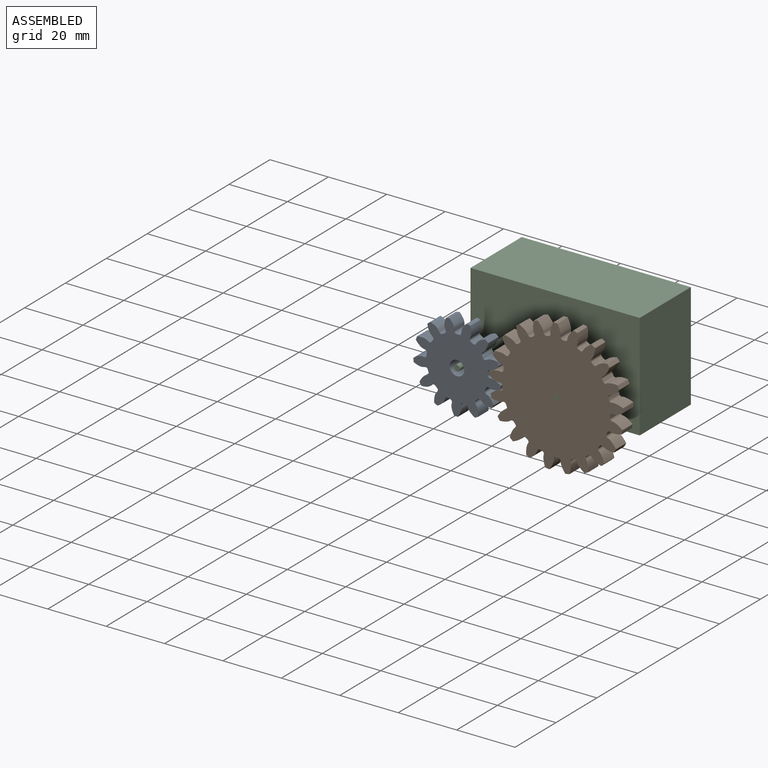
[diagram: assembled view]
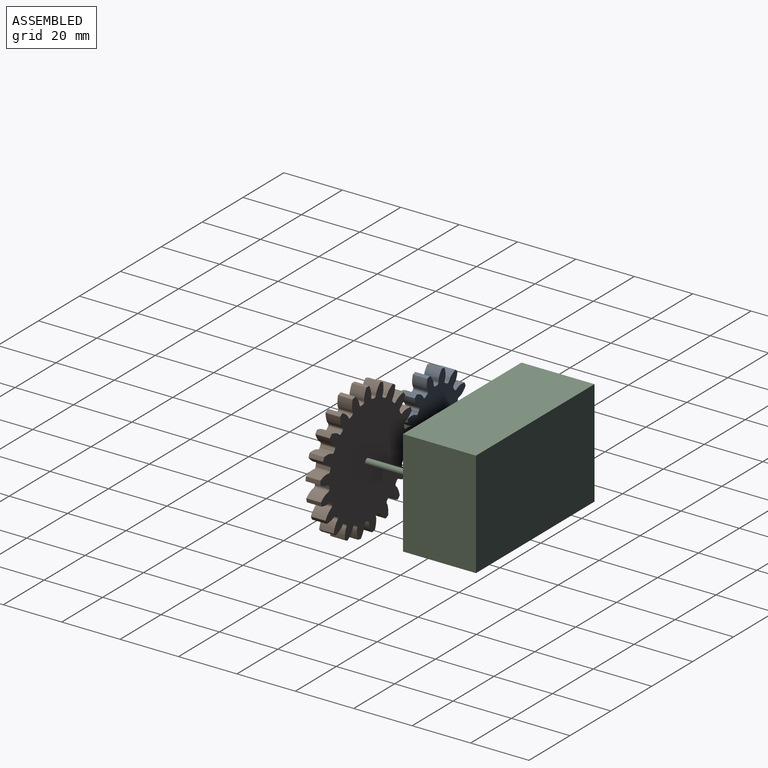
[diagram: assembled view, second angle]
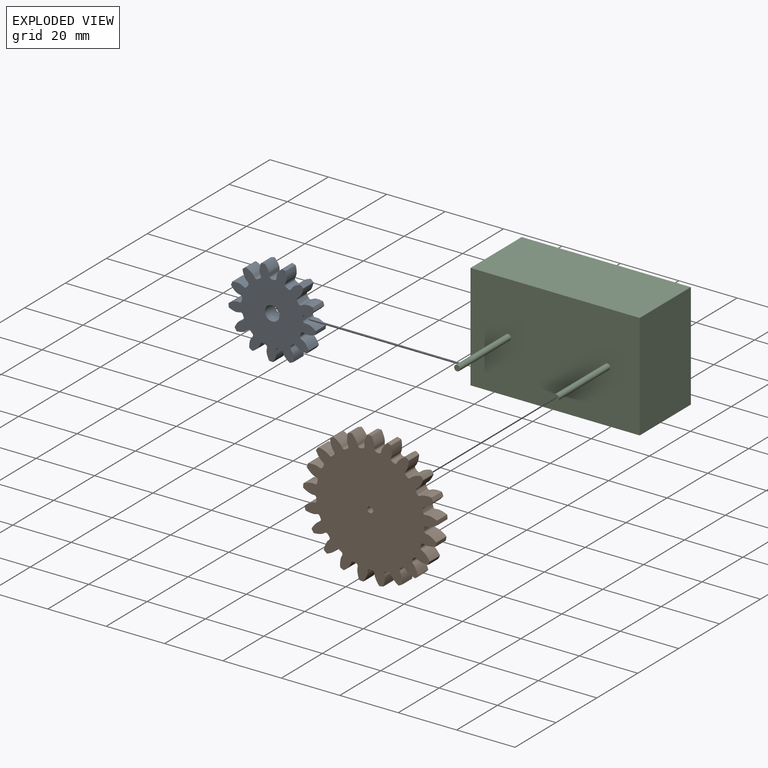
[diagram: exploded view]
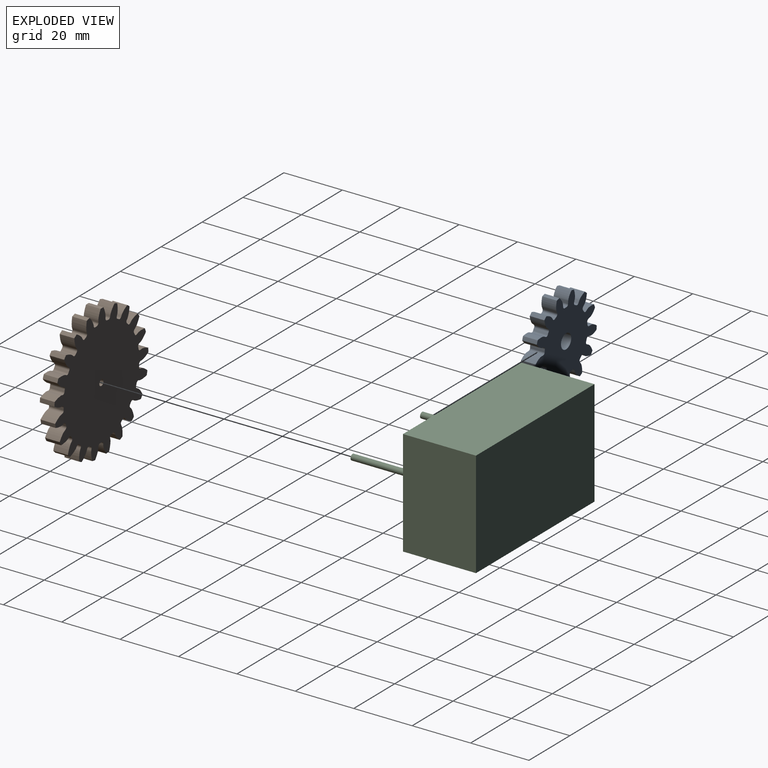
[diagram: exploded view, second angle]
ASSEMBLY  parts=3 mates=2
PART A: 81 faces, bbox 29.8x5x30 mm
  f0: extruded ~5x3.55mm, area 20.4mm2, adj f51,f52,f53,f54
  f1: cylinder r=10.5mm len=5mm, axis (0,1,0), area 4.2mm2, adj f52,f53,f54,f55
  f2: extruded ~5x3.55mm, area 20.4mm2, adj f3,f52,f53,f55
  f3: cylinder r=15mm len=5mm, axis (0,1,0), area 6.3mm2, adj f2,f4,f52,f53
  f4: extruded ~5x3.97mm, area 20.4mm2, adj f3,f52,f53,f56
  f5: cylinder r=10.5mm len=5mm, axis (0,1,0), area 4.2mm2, adj f52,f53,f56,f57
  f6: extruded ~5x3.23mm, area 20.4mm2, adj f7,f52,f53,f57
  f7: cylinder r=15mm len=5mm, axis (0,1,0), area 6.3mm2, adj f6,f8,f52,f53
  f8: extruded ~5x3.49mm, area 20.4mm2, adj f7,f52,f53,f58
  f9: cylinder r=10.5mm len=5mm, axis (0,1,0), area 4.2mm2, adj f52,f53,f58,f59
  f10: extruded ~5x3.94mm, area 20.4mm2, adj f11,f52,f53,f59
  f11: cylinder r=15mm len=5mm, axis (0,1,0), area 6.3mm2, adj f10,f12,f52,f53
  f12: extruded ~5x3.31mm, area 20.4mm2, adj f11,f52,f53,f60
  f13: cylinder r=10.5mm len=5mm, axis (0,1,0), area 4.2mm2, adj f52,f53,f60,f61
  f14: extruded ~5x3.74mm, area 20.4mm2, adj f15,f52,f53,f61
  f15: cylinder r=15mm len=5mm, axis (0,1,0), area 6.3mm2, adj f14,f16,f52,f53
  f16: extruded ~5x3.95mm, area 20.4mm2, adj f15,f52,f53,f62
  f17: cylinder r=10.5mm len=5mm, axis (0,1,0), area 4.2mm2, adj f52,f53,f62,f63
  f18: extruded ~5x2.93mm, area 20.4mm2, adj f19,f52,f53,f63
  f19: cylinder r=15mm len=5mm, axis (0,1,0), area 6.3mm2, adj f18,f20,f52,f53
  f20: extruded ~5x3.69mm, area 20.4mm2, adj f19,f52,f53,f64
  f21: cylinder r=10.5mm len=5mm, axis (0,1,0), area 4.2mm2, adj f52,f53,f64,f65
  f22: extruded ~5x3.84mm, area 20.4mm2, adj f23,f52,f53,f65
  f23: cylinder r=15mm len=5mm, axis (0,1,0), area 6.3mm2, adj f22,f24,f52,f53
  f24: extruded ~5x3.02mm, area 20.4mm2, adj f23,f52,f53,f66
  f25: cylinder r=10.5mm len=5mm, axis (0,1,0), area 4.2mm2, adj f52,f53,f66,f67
  f26: extruded ~5x3.87mm, area 20.4mm2, adj f27,f52,f53,f67
  f27: cylinder r=15mm len=5mm, axis (0,1,0), area 6.3mm2, adj f26,f28,f52,f53
  f28: extruded ~5x3.87mm, area 20.4mm2, adj f27,f52,f53,f68
  f29: cylinder r=10.5mm len=5mm, axis (0,1,0), area 4.2mm2, adj f52,f53,f68,f69
  f30: extruded ~5x3.02mm, area 20.4mm2, adj f31,f52,f53,f69
  f31: cylinder r=15mm len=5mm, axis (0,1,0), area 6.3mm2, adj f30,f32,f52,f53
  f32: extruded ~5x3.84mm, area 20.4mm2, adj f31,f52,f53,f70
  f33: cylinder r=10.5mm len=5mm, axis (0,1,0), area 4.2mm2, adj f52,f53,f70,f71
  f34: extruded ~5x3.69mm, area 20.4mm2, adj f35,f52,f53,f71
  f35: cylinder r=15mm len=5mm, axis (0,1,0), area 6.3mm2, adj f34,f36,f52,f53
  f36: extruded ~5x2.93mm, area 20.4mm2, adj f35,f52,f53,f72
  f37: cylinder r=10.5mm len=5mm, axis (0,1,0), area 4.2mm2, adj f52,f53,f72,f73
  f38: extruded ~5x3.95mm, area 20.4mm2, adj f39,f52,f53,f73
  f39: cylinder r=15mm len=5mm, axis (0,1,0), area 6.3mm2, adj f38,f40,f52,f53
  f40: extruded ~5x3.74mm, area 20.4mm2, adj f39,f52,f53,f74
  f41: cylinder r=10.5mm len=5mm, axis (0,1,0), area 4.2mm2, adj f52,f53,f74,f75
  f42: extruded ~5x3.31mm, area 20.4mm2, adj f43,f52,f53,f75
  f43: cylinder r=15mm len=5mm, axis (0,1,0), area 6.3mm2, adj f42,f44,f52,f53
  f44: extruded ~5x3.94mm, area 20.4mm2, adj f43,f52,f53,f76
  f45: cylinder r=10.5mm len=5mm, axis (0,1,0), area 4.2mm2, adj f52,f53,f76,f77
  f46: extruded ~5x3.49mm, area 20.4mm2, adj f47,f52,f53,f77
  f47: cylinder r=15mm len=5mm, axis (0,1,0), area 6.3mm2, adj f46,f48,f52,f53
  f48: extruded ~5x3.23mm, area 20.4mm2, adj f47,f52,f53,f78
  f49: cylinder r=10.5mm len=5mm, axis (0,1,0), area 4.2mm2, adj f52,f53,f78,f79
  f50: extruded ~5x3.97mm, area 20.4mm2, adj f51,f52,f53,f79
  f51: cylinder r=15mm len=5mm, axis (0,1,0), area 6.3mm2, adj f0,f50,f52,f53
  f52: plane 29.98x29.76mm, normal (0,-1,0), area 492.7mm2, adj f0,f1,f2,f3,f4,f5,f6,f7
  f53: plane 29.98x29.76mm, normal (0,1,0), area 492.7mm2, adj f0,f1,f2,f3,f4,f5,f6,f7
  f54: cylinder r=0.74mm len=5mm, axis (0,1,0), area 5.6mm2, adj f0,f1,f52,f53
  f55: cylinder r=0.74mm len=5mm, axis (0,1,0), area 5.6mm2, adj f1,f2,f52,f53
  f56: cylinder r=0.74mm len=5mm, axis (0,1,0), area 5.6mm2, adj f4,f5,f52,f53
  f57: cylinder r=0.74mm len=5mm, axis (0,1,0), area 5.6mm2, adj f5,f6,f52,f53
  f58: cylinder r=0.74mm len=5mm, axis (0,1,0), area 5.6mm2, adj f8,f9,f52,f53
  f59: cylinder r=0.74mm len=5mm, axis (0,1,0), area 5.6mm2, adj f9,f10,f52,f53
  f60: cylinder r=0.74mm len=5mm, axis (0,1,0), area 5.6mm2, adj f12,f13,f52,f53
  f61: cylinder r=0.74mm len=5mm, axis (0,1,0), area 5.6mm2, adj f13,f14,f52,f53
  f62: cylinder r=0.74mm len=5mm, axis (0,1,0), area 5.6mm2, adj f16,f17,f52,f53
  f63: cylinder r=0.74mm len=5mm, axis (0,1,0), area 5.6mm2, adj f17,f18,f52,f53
  f64: cylinder r=0.74mm len=5mm, axis (0,1,0), area 5.6mm2, adj f20,f21,f52,f53
  f65: cylinder r=0.74mm len=5mm, axis (0,1,0), area 5.6mm2, adj f21,f22,f52,f53
  f66: cylinder r=0.74mm len=5mm, axis (0,1,0), area 5.6mm2, adj f24,f25,f52,f53
  f67: cylinder r=0.74mm len=5mm, axis (0,1,0), area 5.6mm2, adj f25,f26,f52,f53
  f68: cylinder r=0.74mm len=5mm, axis (0,1,0), area 5.6mm2, adj f28,f29,f52,f53
  f69: cylinder r=0.74mm len=5mm, axis (0,1,0), area 5.6mm2, adj f29,f30,f52,f53
  f70: cylinder r=0.74mm len=5mm, axis (0,1,0), area 5.6mm2, adj f32,f33,f52,f53
  f71: cylinder r=0.74mm len=5mm, axis (0,1,0), area 5.6mm2, adj f33,f34,f52,f53
  f72: cylinder r=0.74mm len=5mm, axis (0,1,0), area 5.6mm2, adj f36,f37,f52,f53
  f73: cylinder r=0.74mm len=5mm, axis (0,1,0), area 5.6mm2, adj f37,f38,f52,f53
  f74: cylinder r=0.74mm len=5mm, axis (0,1,0), area 5.6mm2, adj f40,f41,f52,f53
  f75: cylinder r=0.74mm len=5mm, axis (0,1,0), area 5.6mm2, adj f41,f42,f52,f53
  f76: cylinder r=0.74mm len=5mm, axis (0,1,0), area 5.6mm2, adj f44,f45,f52,f53
  f77: cylinder r=0.74mm len=5mm, axis (0,1,0), area 5.6mm2, adj f45,f46,f52,f53
  f78: cylinder r=0.74mm len=5mm, axis (0,1,0), area 5.6mm2, adj f48,f49,f52,f53
  f79: cylinder r=0.74mm len=5mm, axis (0,1,0), area 5.6mm2, adj f49,f50,f52,f53
  f80: cylinder r=2.5mm len=5mm, axis (0,1,0), area 78.5mm2, adj f52,f53
PART B: 129 faces, bbox 45.9x5x46 mm
  f0: extruded ~5x3.65mm, area 20.2mm2, adj f83,f84,f85,f86
  f1: cylinder r=18.5mm len=5mm, axis (0,1,0), area 4mm2, adj f84,f85,f86,f87
  f2: extruded ~5x3.65mm, area 20.2mm2, adj f3,f84,f85,f87
  f3: cylinder r=23mm len=5mm, axis (0,1,0), area 7mm2, adj f2,f4,f84,f85
  f4: extruded ~5x3.95mm, area 20.2mm2, adj f3,f84,f85,f88
  f5: cylinder r=18.5mm len=5mm, axis (0,1,0), area 4mm2, adj f84,f85,f88,f89
  f6: extruded ~5x3.02mm, area 20.2mm2, adj f7,f84,f85,f89
  f7: cylinder r=23mm len=5mm, axis (0,1,0), area 7mm2, adj f6,f8,f84,f85
  f8: extruded ~5x3.91mm, area 20.2mm2, adj f7,f84,f85,f90
  f9: cylinder r=18.5mm len=5mm, axis (0,1,0), area 4mm2, adj f84,f85,f90,f91
  f10: extruded ~5x3.36mm, area 20.2mm2, adj f11,f84,f85,f91
  f11: cylinder r=23mm len=5mm, axis (0,1,0), area 7mm2, adj f10,f12,f84,f85
  f12: extruded ~5x3.51mm, area 20.2mm2, adj f11,f84,f85,f92
  f13: cylinder r=18.5mm len=5mm, axis (0,1,0), area 4mm2, adj f84,f85,f92,f93
  f14: extruded ~5x3.84mm, area 20.2mm2, adj f15,f84,f85,f93
  f15: cylinder r=23mm len=5mm, axis (0,1,0), area 7mm2, adj f14,f16,f84,f85
  f16: extruded ~5x2.82mm, area 20.2mm2, adj f15,f84,f85,f94
  f17: cylinder r=18.5mm len=5mm, axis (0,1,0), area 4mm2, adj f84,f85,f94,f95
  f18: extruded ~5x3.97mm, area 20.2mm2, adj f19,f84,f85,f95
  f19: cylinder r=23mm len=5mm, axis (0,1,0), area 7mm2, adj f18,f20,f84,f85
  f20: extruded ~5x3.52mm, area 20.2mm2, adj f19,f84,f85,f96
  f21: cylinder r=18.5mm len=5mm, axis (0,1,0), area 4mm2, adj f84,f85,f96,f97
  f22: extruded ~5x3.75mm, area 20.2mm2, adj f23,f84,f85,f97
  f23: cylinder r=23mm len=5mm, axis (0,1,0), area 7mm2, adj f22,f24,f84,f85
  f24: extruded ~5x3.91mm, area 20.2mm2, adj f23,f84,f85,f98
  f25: cylinder r=18.5mm len=5mm, axis (0,1,0), area 4mm2, adj f84,f85,f98,f99
  f26: extruded ~5x3.2mm, area 20.2mm2, adj f27,f84,f85,f99
  f27: cylinder r=23mm len=5mm, axis (0,1,0), area 7mm2, adj f26,f28,f84,f85
  f28: extruded ~5x3.95mm, area 20.2mm2, adj f27,f84,f85,f100
  f29: cylinder r=18.5mm len=5mm, axis (0,1,0), area 4mm2, adj f84,f85,f100,f101
  f30: extruded ~5x3.2mm, area 20.2mm2, adj f31,f84,f85,f101
  f31: cylinder r=23mm len=5mm, axis (0,1,0), area 7mm2, adj f30,f32,f84,f85
  f32: extruded ~5x3.64mm, area 20.2mm2, adj f31,f84,f85,f102
  f33: cylinder r=18.5mm len=5mm, axis (0,1,0), area 4mm2, adj f84,f85,f102,f103
  f34: extruded ~5x3.75mm, area 20.2mm2, adj f35,f84,f85,f103
  f35: cylinder r=23mm len=5mm, axis (0,1,0), area 7mm2, adj f34,f36,f84,f85
  f36: extruded ~5x3.01mm, area 20.2mm2, adj f35,f84,f85,f104
  f37: cylinder r=18.5mm len=5mm, axis (0,1,0), area 4mm2, adj f84,f85,f104,f105
  f38: extruded ~5x3.97mm, area 20.2mm2, adj f39,f84,f85,f105
  f39: cylinder r=23mm len=5mm, axis (0,1,0), area 7mm2, adj f38,f40,f84,f85
  f40: extruded ~5x3.37mm, area 20.2mm2, adj f39,f84,f85,f106
  f41: cylinder r=18.5mm len=5mm, axis (0,1,0), area 4mm2, adj f84,f85,f106,f107
  f42: extruded ~5x3.84mm, area 20.2mm2, adj f43,f84,f85,f107
  f43: cylinder r=23mm len=5mm, axis (0,1,0), area 7mm2, adj f42,f44,f84,f85
  f44: extruded ~5x3.84mm, area 20.2mm2, adj f43,f84,f85,f108
  f45: cylinder r=18.5mm len=5mm, axis (0,1,0), area 4mm2, adj f84,f85,f108,f109
  f46: extruded ~5x3.37mm, area 20.2mm2, adj f47,f84,f85,f109
  f47: cylinder r=23mm len=5mm, axis (0,1,0), area 7mm2, adj f46,f48,f84,f85
  f48: extruded ~5x3.97mm, area 20.2mm2, adj f47,f84,f85,f110
  f49: cylinder r=18.5mm len=5mm, axis (0,1,0), area 4mm2, adj f84,f85,f110,f111
  f50: extruded ~5x3.01mm, area 20.2mm2, adj f51,f84,f85,f111
  f51: cylinder r=23mm len=5mm, axis (0,1,0), area 7mm2, adj f50,f52,f84,f85
  f52: extruded ~5x3.75mm, area 20.2mm2, adj f51,f84,f85,f112
  f53: cylinder r=18.5mm len=5mm, axis (0,1,0), area 4mm2, adj f84,f85,f112,f113
  f54: extruded ~5x3.64mm, area 20.2mm2, adj f55,f84,f85,f113
  f55: cylinder r=23mm len=5mm, axis (0,1,0), area 7mm2, adj f54,f56,f84,f85
  f56: extruded ~5x3.2mm, area 20.2mm2, adj f55,f84,f85,f114
  f57: cylinder r=18.5mm len=5mm, axis (0,1,0), area 4mm2, adj f84,f85,f114,f115
  f58: extruded ~5x3.95mm, area 20.2mm2, adj f59,f84,f85,f115
  f59: cylinder r=23mm len=5mm, axis (0,1,0), area 7mm2, adj f58,f60,f84,f85
  f60: extruded ~5x3.2mm, area 20.2mm2, adj f59,f84,f85,f116
  f61: cylinder r=18.5mm len=5mm, axis (0,1,0), area 4mm2, adj f84,f85,f116,f117
  f62: extruded ~5x3.91mm, area 20.2mm2, adj f63,f84,f85,f117
  f63: cylinder r=23mm len=5mm, axis (0,1,0), area 7mm2, adj f62,f64,f84,f85
  f64: extruded ~5x3.75mm, area 20.2mm2, adj f63,f84,f85,f118
  f65: cylinder r=18.5mm len=5mm, axis (0,1,0), area 4mm2, adj f84,f85,f118,f119
  f66: extruded ~5x3.52mm, area 20.2mm2, adj f67,f84,f85,f119
  f67: cylinder r=23mm len=5mm, axis (0,1,0), area 7mm2, adj f66,f68,f84,f85
  f68: extruded ~5x3.97mm, area 20.2mm2, adj f67,f84,f85,f120
  f69: cylinder r=18.5mm len=5mm, axis (0,1,0), area 4mm2, adj f84,f85,f120,f121
  f70: extruded ~5x2.82mm, area 20.2mm2, adj f71,f84,f85,f121
  f71: cylinder r=23mm len=5mm, axis (0,1,0), area 7mm2, adj f70,f72,f84,f85
  f72: extruded ~5x3.84mm, area 20.2mm2, adj f71,f84,f85,f122
  f73: cylinder r=18.5mm len=5mm, axis (0,1,0), area 4mm2, adj f84,f85,f122,f123
  f74: extruded ~5x3.51mm, area 20.2mm2, adj f75,f84,f85,f123
  f75: cylinder r=23mm len=5mm, axis (0,1,0), area 7mm2, adj f74,f76,f84,f85
  f76: extruded ~5x3.36mm, area 20.2mm2, adj f75,f84,f85,f124
  f77: cylinder r=18.5mm len=5mm, axis (0,1,0), area 4mm2, adj f84,f85,f124,f125
  f78: extruded ~5x3.91mm, area 20.2mm2, adj f79,f84,f85,f125
  f79: cylinder r=23mm len=5mm, axis (0,1,0), area 7mm2, adj f78,f80,f84,f85
  f80: extruded ~5x3.02mm, area 20.2mm2, adj f79,f84,f85,f126
  f81: cylinder r=18.5mm len=5mm, axis (0,1,0), area 4mm2, adj f84,f85,f126,f127
  f82: extruded ~5x3.95mm, area 20.2mm2, adj f83,f84,f85,f127
  f83: cylinder r=23mm len=5mm, axis (0,1,0), area 7mm2, adj f0,f82,f84,f85
  f84: plane 45.98x45.85mm, normal (0,-1,0), area 1355.5mm2, adj f0,f1,f2,f3,f4,f5,f6,f7
  f85: plane 45.98x45.85mm, normal (0,1,0), area 1355.5mm2, adj f0,f1,f2,f3,f4,f5,f6,f7
  f86: cylinder r=0.74mm len=5mm, axis (0,1,0), area 5.7mm2, adj f0,f1,f84,f85
  f87: cylinder r=0.74mm len=5mm, axis (0,1,0), area 5.7mm2, adj f1,f2,f84,f85
  f88: cylinder r=0.74mm len=5mm, axis (0,1,0), area 5.7mm2, adj f4,f5,f84,f85
  f89: cylinder r=0.74mm len=5mm, axis (0,1,0), area 5.7mm2, adj f5,f6,f84,f85
  f90: cylinder r=0.74mm len=5mm, axis (0,1,0), area 5.7mm2, adj f8,f9,f84,f85
  f91: cylinder r=0.74mm len=5mm, axis (0,1,0), area 5.7mm2, adj f9,f10,f84,f85
  f92: cylinder r=0.74mm len=5mm, axis (0,1,0), area 5.7mm2, adj f12,f13,f84,f85
  f93: cylinder r=0.74mm len=5mm, axis (0,1,0), area 5.7mm2, adj f13,f14,f84,f85
  f94: cylinder r=0.74mm len=5mm, axis (0,1,0), area 5.7mm2, adj f16,f17,f84,f85
  f95: cylinder r=0.74mm len=5mm, axis (0,1,0), area 5.7mm2, adj f17,f18,f84,f85
  f96: cylinder r=0.74mm len=5mm, axis (0,1,0), area 5.7mm2, adj f20,f21,f84,f85
  f97: cylinder r=0.74mm len=5mm, axis (0,1,0), area 5.7mm2, adj f21,f22,f84,f85
  f98: cylinder r=0.74mm len=5mm, axis (0,1,0), area 5.7mm2, adj f24,f25,f84,f85
  f99: cylinder r=0.74mm len=5mm, axis (0,1,0), area 5.7mm2, adj f25,f26,f84,f85
  f100: cylinder r=0.74mm len=5mm, axis (0,1,0), area 5.7mm2, adj f28,f29,f84,f85
  f101: cylinder r=0.74mm len=5mm, axis (0,1,0), area 5.7mm2, adj f29,f30,f84,f85
  f102: cylinder r=0.74mm len=5mm, axis (0,1,0), area 5.7mm2, adj f32,f33,f84,f85
  f103: cylinder r=0.74mm len=5mm, axis (0,1,0), area 5.7mm2, adj f33,f34,f84,f85
  f104: cylinder r=0.74mm len=5mm, axis (0,1,0), area 5.7mm2, adj f36,f37,f84,f85
  f105: cylinder r=0.74mm len=5mm, axis (0,1,0), area 5.7mm2, adj f37,f38,f84,f85
  f106: cylinder r=0.74mm len=5mm, axis (0,1,0), area 5.7mm2, adj f40,f41,f84,f85
  f107: cylinder r=0.74mm len=5mm, axis (0,1,0), area 5.7mm2, adj f41,f42,f84,f85
  f108: cylinder r=0.74mm len=5mm, axis (0,1,0), area 5.7mm2, adj f44,f45,f84,f85
  f109: cylinder r=0.74mm len=5mm, axis (0,1,0), area 5.7mm2, adj f45,f46,f84,f85
  f110: cylinder r=0.74mm len=5mm, axis (0,1,0), area 5.7mm2, adj f48,f49,f84,f85
  f111: cylinder r=0.74mm len=5mm, axis (0,1,0), area 5.7mm2, adj f49,f50,f84,f85
  f112: cylinder r=0.74mm len=5mm, axis (0,1,0), area 5.7mm2, adj f52,f53,f84,f85
  f113: cylinder r=0.74mm len=5mm, axis (0,1,0), area 5.7mm2, adj f53,f54,f84,f85
  f114: cylinder r=0.74mm len=5mm, axis (0,1,0), area 5.7mm2, adj f56,f57,f84,f85
  f115: cylinder r=0.74mm len=5mm, axis (0,1,0), area 5.7mm2, adj f57,f58,f84,f85
  f116: cylinder r=0.74mm len=5mm, axis (0,1,0), area 5.7mm2, adj f60,f61,f84,f85
  f117: cylinder r=0.74mm len=5mm, axis (0,1,0), area 5.7mm2, adj f61,f62,f84,f85
  f118: cylinder r=0.74mm len=5mm, axis (0,1,0), area 5.7mm2, adj f64,f65,f84,f85
  f119: cylinder r=0.74mm len=5mm, axis (0,1,0), area 5.7mm2, adj f65,f66,f84,f85
  f120: cylinder r=0.74mm len=5mm, axis (0,1,0), area 5.7mm2, adj f68,f69,f84,f85
  f121: cylinder r=0.74mm len=5mm, axis (0,1,0), area 5.7mm2, adj f69,f70,f84,f85
  f122: cylinder r=0.74mm len=5mm, axis (0,1,0), area 5.7mm2, adj f72,f73,f84,f85
  f123: cylinder r=0.74mm len=5mm, axis (0,1,0), area 5.7mm2, adj f73,f74,f84,f85
  f124: cylinder r=0.74mm len=5mm, axis (0,1,0), area 5.7mm2, adj f76,f77,f84,f85
  f125: cylinder r=0.74mm len=5mm, axis (0,1,0), area 5.7mm2, adj f77,f78,f84,f85
  f126: cylinder r=0.74mm len=5mm, axis (0,1,0), area 5.7mm2, adj f80,f81,f84,f85
  f127: cylinder r=0.74mm len=5mm, axis (0,1,0), area 5.7mm2, adj f81,f82,f84,f85
  f128: cylinder r=1mm len=5mm, axis (0,-1,0), area 31.4mm2, adj f84,f85
PART C: 10 faces, bbox 57.9x50x36.4 mm
  f0: plane 57.94x25mm, normal (0,0,-1), area 1448.4mm2, adj f1,f3,f4,f5
  f1: plane 36.35x25mm, normal (1,0,0), area 908.9mm2, adj f0,f2,f4,f5
  f2: plane 57.94x25mm, normal (0,0,1), area 1448.4mm2, adj f1,f3,f4,f5
  f3: plane 36.35x25mm, normal (-1,0,0), area 908.9mm2, adj f0,f2,f4,f5
  f4: plane 57.94x36.35mm, normal (0,1,0), area 2106.3mm2, adj f0,f1,f2,f3
  f5: plane 57.94x36.35mm, normal (0,-1,0), area 2100mm2, adj f0,f1,f2,f3,f6,f8
  f6: cylinder r=1mm len=25mm, axis (0,1,0), area 157.1mm2, adj f5,f7
  f7: plane 2x2mm, normal (0,-1,0), area 3.1mm2, adj f6
  f8: cylinder r=1mm len=25mm, axis (0,1,0), area 157.1mm2, adj f5,f9
  f9: plane 2x2mm, normal (0,-1,0), area 3.1mm2, adj f8
PLACE A rot(axis=(0,1,0),77.5deg) t=(-47.68,-1.01,36.13)mm
PLACE B rot(axis=(0,-1,0),48deg) t=(-49.67,-1.01,-3.77)mm
PLACE C t=(-33.11,18.99,-38.34)mm fixed
MATE revolute C.f6 <-> A.f3  axis (0,-1,0) through (-47.68,-6.01,36.13)mm
MATE revolute B.f3 <-> C.f8  axis (0,-1,0) through (-13.68,-6.01,36.13)mm
